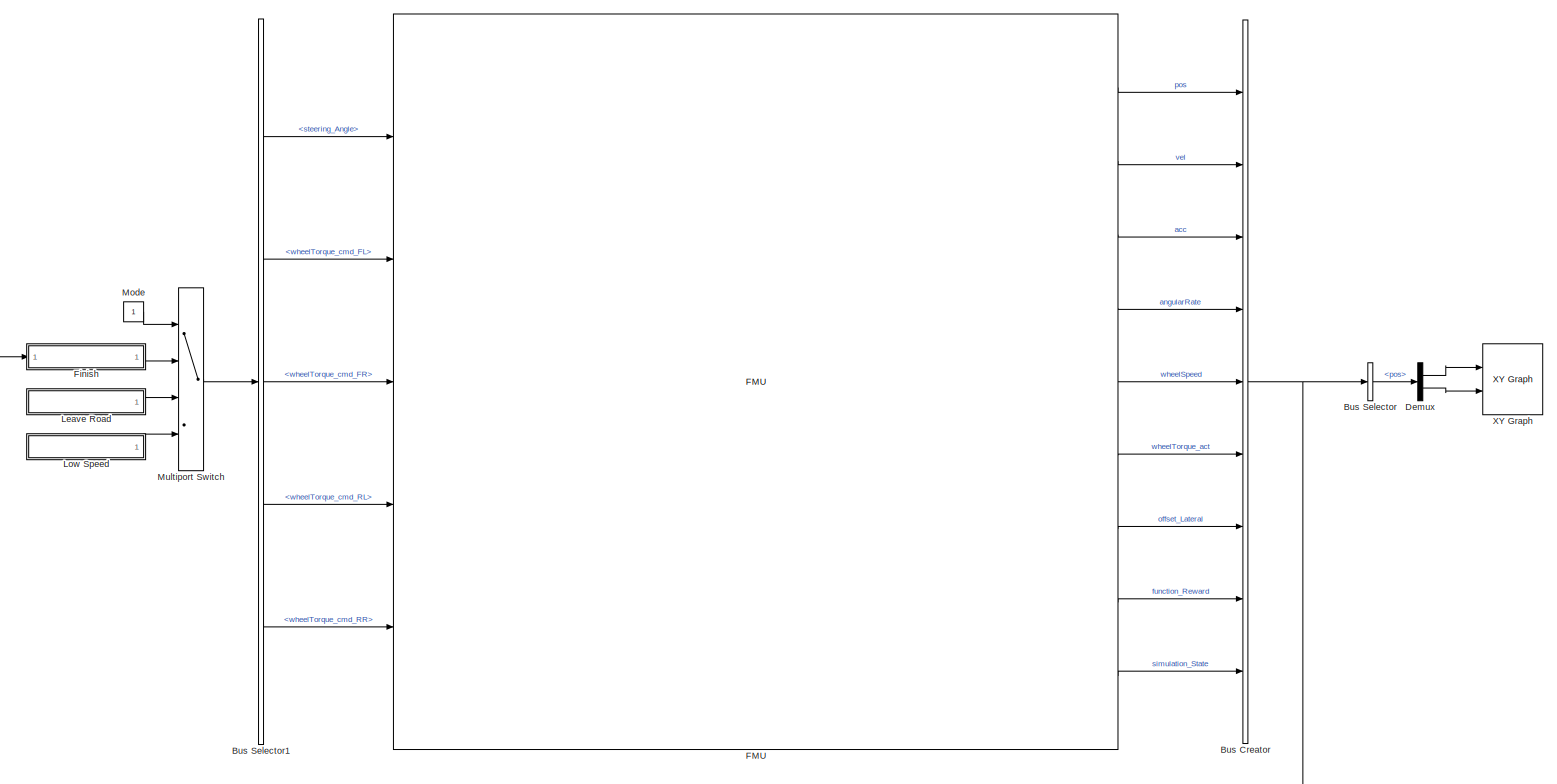
[diagram: root canvas - part 1/1, most of the canvas]
MODEL slx_65d1db5c3337
KIND model
CONFIG AbsTol = auto
CONFIG EnableMultiTasking = off
CONFIG FixedStep = 0.01
CONFIG MaxStep = auto
CONFIG MinStep = auto
CONFIG RelTol = 1e-3
CONFIG SampleTimeConstraint = Unconstrained
CONFIG Solver = FixedStepDiscrete
CONFIG SolverName = FixedStepDiscrete
CONFIG StartTime = 0.0
CONFIG StopTime = 25
BLOCK [BusCreator] Bus Creator
  DisplayOption = bar
  InheritFromInputs = on
  Inputs = 9
  Ports = [9, 1]
BLOCK [BusSelector] Bus Selector
  OutputAsBus = off
  OutputSignals = pos
  Ports = [1, 1]
BLOCK [BusSelector] Bus Selector1
  OutputAsBus = off
  OutputSignals = steering_Angle,wheelTorque_cmd_FL,wheelTorque_cmd_FR,wheelTorque_cmd_RL,wheelTorque_cmd_RR
  Ports = [1, 5]
BLOCK [Demux] Demux
  DisplayOption = bar
  Outputs = 2
  Ports = [1, 2]
BLOCK [FMU] FMU
  FMUMode = CoSimulation
  FMUName = MED2018_VehicleModel.fmu
  FMUSampleTime = -1
  MaskDisplay = if (exist([Simulink.fileGenControl('get','CacheFolder') '\slprj\_fmu\29436d1a7e0c536569824b4bf3de276e\MED2018_VehicleModel\model.png'],'file'))\n    image([Simulink.fileGenControl('get','CacheFolder') '\slprj\_fmu\29436d1a7e0c536569824b4bf3de276e\MED2018_VehicleModel\model.png']);\n    text(0.03, 0.97, 'MED2018.VehicleModel', 'horizontalAlignment', 'left', 'verticalAlignment', 'top');\nelse\n    disp(...<+596ch>
  MaskPromptString = Communication StepsizeCommunication stepsize between FMU and Simulink
  MaskType = MED2018.VehicleModel [Co-Simulation, v2.0]
  Ports = [5, 9]
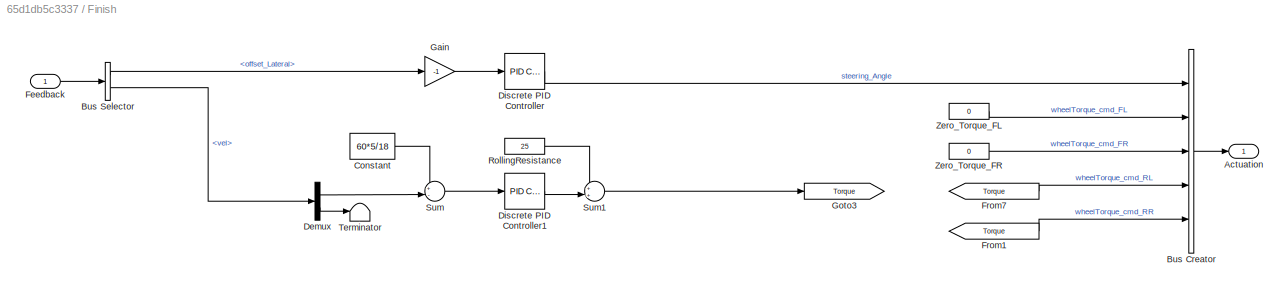
BLOCK [SubSystem] Finish
  Ports = [1, 1]
  RequestExecContextInheritance = off
  Variant = off
BLOCK [Outport] Finish/Actuation
  IconDisplay = Port number
BLOCK [BusCreator] Finish/Bus Creator
  DisplayOption = bar
  InheritFromInputs = on
  Inputs = 5
  Ports = [5, 1]
BLOCK [BusSelector] Finish/Bus Selector
  OutputAsBus = off
  OutputSignals = offset_Lateral,vel
  Ports = [1, 2]
BLOCK [Constant] Finish/Constant
  Value = 60*5/18
BLOCK [Demux] Finish/Demux
  DisplayOption = bar
  Outputs = 2
  Ports = [1, 2]
BLOCK [Reference] Finish/Discrete PID Controller  REF=simulink/Continuous/PID Controller
  Ports = [1, 1]
  SourceBlock = simulink/Continuous/PID Controller
  SourceProductBaseCode = SL
  SourceProductName = Simulink
  SourceType = PID 1dof
BLOCK [Reference] Finish/Discrete PID Controller1  REF=simulink/Continuous/PID Controller
  Ports = [1, 1]
  SourceBlock = simulink/Continuous/PID Controller
  SourceProductBaseCode = SL
  SourceProductName = Simulink
  SourceType = PID 1dof
BLOCK [Inport] Finish/Feedback
  IconDisplay = Port number
BLOCK [From] Finish/From1
  GotoTag = Torque
BLOCK [From] Finish/From7
  GotoTag = Torque
BLOCK [Gain] Finish/Gain
  Gain = -1
  OutDataTypeStr = Inherit: Inherit via internal rule
  ParamDataTypeStr = Inherit: Inherit via internal rule
  SaturateOnIntegerOverflow = off
BLOCK [Goto] Finish/Goto3
  GotoTag = Torque
BLOCK [Constant] Finish/RollingResistance
  Value = 25
BLOCK [Sum] Finish/Sum
  IconShape = round
  InputSameDT = off
  Inputs = +-|
  OutDataTypeStr = Inherit: Inherit via internal rule
  Ports = [2, 1]
  SaturateOnIntegerOverflow = off
BLOCK [Sum] Finish/Sum1
  IconShape = round
  InputSameDT = off
  Inputs = ++|
  OutDataTypeStr = Inherit: Inherit via internal rule
  Ports = [2, 1]
  SaturateOnIntegerOverflow = off
BLOCK [Terminator] Finish/Terminator
BLOCK [Constant] Finish/Zero_Torque_FL
  Value = 0
BLOCK [Constant] Finish/Zero_Torque_FR
  Value = 0
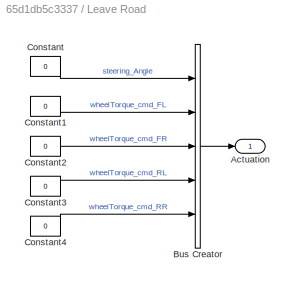
BLOCK [SubSystem] Leave Road
  Ports = [0, 1]
  RequestExecContextInheritance = off
  Variant = off
BLOCK [Outport] Leave Road/Actuation
  IconDisplay = Port number
BLOCK [BusCreator] Leave Road/Bus Creator
  DisplayOption = bar
  InheritFromInputs = on
  Inputs = 5
  Ports = [5, 1]
BLOCK [Constant] Leave Road/Constant
  Value = 0
BLOCK [Constant] Leave Road/Constant1
  Value = 0
BLOCK [Constant] Leave Road/Constant2
  Value = 0
BLOCK [Constant] Leave Road/Constant3
  Value = 0
BLOCK [Constant] Leave Road/Constant4
  Value = 0
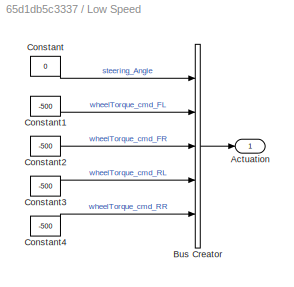
BLOCK [SubSystem] Low Speed
  Ports = [0, 1]
  RequestExecContextInheritance = off
  Variant = off
BLOCK [Outport] Low Speed/Actuation
  IconDisplay = Port number
BLOCK [BusCreator] Low Speed/Bus Creator
  DisplayOption = bar
  InheritFromInputs = on
  Inputs = 5
  Ports = [5, 1]
BLOCK [Constant] Low Speed/Constant
  Value = 0
BLOCK [Constant] Low Speed/Constant1
  Value = -500
BLOCK [Constant] Low Speed/Constant2
  Value = -500
BLOCK [Constant] Low Speed/Constant3
  Value = -500
BLOCK [Constant] Low Speed/Constant4
  Value = -500
BLOCK [Constant] Mode
BLOCK [MultiPortSwitch] Multiport Switch
  InputSameDT = off
  Ports = [4, 1]
  SaturateOnIntegerOverflow = off
BLOCK [Reference] XY Graph  REF=simulink/Sinks/XY Graph
  Ports = [2]
  SourceBlock = simulink/Sinks/XY Graph
  SourceProductBaseCode = SL
  SourceProductName = Simulink
  SourceType = XY scope.
NET Bus Creator:1 -> Bus Selector:1, Finish:1
LINE Bus Selector1:1 -> FMU:1
LINE Bus Selector1:2 -> FMU:2
LINE Bus Selector1:3 -> FMU:3
LINE Bus Selector1:4 -> FMU:4
LINE Bus Selector1:5 -> FMU:5
LINE Bus Selector:1 -> Demux:1
LINE Demux:1 -> XY Graph:1
LINE Demux:2 -> XY Graph:2
LINE FMU:1 -> Bus Creator:1
LINE FMU:2 -> Bus Creator:2
LINE FMU:3 -> Bus Creator:3
LINE FMU:4 -> Bus Creator:4
LINE FMU:5 -> Bus Creator:5
LINE FMU:6 -> Bus Creator:6
LINE FMU:7 -> Bus Creator:7
LINE FMU:8 -> Bus Creator:8
LINE FMU:9 -> Bus Creator:9
LINE Finish/Bus Creator:1 -> Finish/Actuation:1
LINE Finish/Bus Selector:1 -> Finish/Gain:1
LINE Finish/Bus Selector:2 -> Finish/Demux:1
LINE Finish/Constant:1 -> Finish/Sum:1
LINE Finish/Demux:1 -> Finish/Sum:2
LINE Finish/Demux:2 -> Finish/Terminator:1
LINE Finish/Discrete PID Controller1:1 -> Finish/Sum1:2
LINE Finish/Discrete PID Controller:1 -> Finish/Bus Creator:1
LINE Finish/Feedback:1 -> Finish/Bus Selector:1
LINE Finish/From1:1 -> Finish/Bus Creator:5
LINE Finish/From7:1 -> Finish/Bus Creator:4
LINE Finish/Gain:1 -> Finish/Discrete PID Controller:1
LINE Finish/RollingResistance:1 -> Finish/Sum1:1
LINE Finish/Sum1:1 -> Finish/Goto3:1
LINE Finish/Sum:1 -> Finish/Discrete PID Controller1:1
LINE Finish/Zero_Torque_FL:1 -> Finish/Bus Creator:2
LINE Finish/Zero_Torque_FR:1 -> Finish/Bus Creator:3
LINE Finish:1 -> Multiport Switch:2
LINE Leave Road/Bus Creator:1 -> Leave Road/Actuation:1
LINE Leave Road/Constant1:1 -> Leave Road/Bus Creator:2
LINE Leave Road/Constant2:1 -> Leave Road/Bus Creator:3
LINE Leave Road/Constant3:1 -> Leave Road/Bus Creator:4
LINE Leave Road/Constant4:1 -> Leave Road/Bus Creator:5
LINE Leave Road/Constant:1 -> Leave Road/Bus Creator:1
LINE Leave Road:1 -> Multiport Switch:3
LINE Low Speed/Bus Creator:1 -> Low Speed/Actuation:1
LINE Low Speed/Constant1:1 -> Low Speed/Bus Creator:2
LINE Low Speed/Constant2:1 -> Low Speed/Bus Creator:3
LINE Low Speed/Constant3:1 -> Low Speed/Bus Creator:4
LINE Low Speed/Constant4:1 -> Low Speed/Bus Creator:5
LINE Low Speed/Constant:1 -> Low Speed/Bus Creator:1
LINE Low Speed:1 -> Multiport Switch:4
LINE Mode:1 -> Multiport Switch:1
LINE Multiport Switch:1 -> Bus Selector1:1
note: NET lines group one-source signal fan-out (src -> all destinations, sorted); 1:1 wires keep LINE
